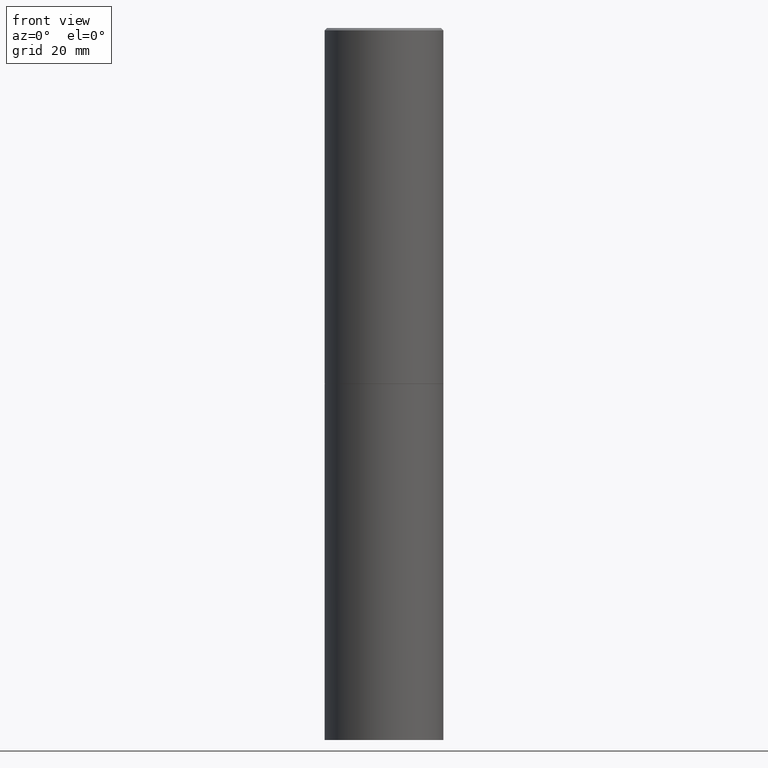
[diagram: clean part render]
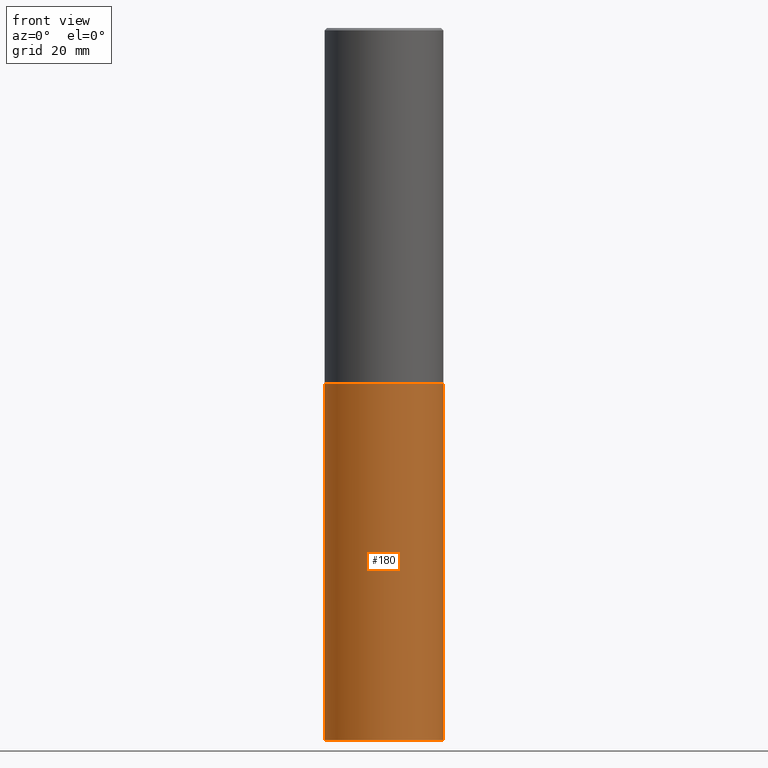
[diagram: same view with one face highlighted and labeled with its STEP entity id]
A machine part, front view. The second image highlights one B-rep face of the part: STEP entity #180.
In plain terms, the highlighted cylindrical surface (partial cylindrical patch) has radius 12.7 mm, axis along (-0, 0, 1).
Its self-contained STEP definition (entity closure, byte-faithful):
#10 = ORIENTED_EDGE ( 'NONE', *, *, #130, .F. ) ;
#12 = ORIENTED_EDGE ( 'NONE', *, *, #36, .F. ) ;
#17 = LINE ( 'NONE', #125, #307 ) ;
#18 = AXIS2_PLACEMENT_3D ( 'NONE', #97, #153, #308 ) ;
#36 = EDGE_CURVE ( 'NONE', #327, #91, #197, .T. ) ;
#39 = EDGE_CURVE ( 'NONE', #84, #179, #17, .T. ) ;
#46 = CYLINDRICAL_SURFACE ( 'NONE', #300, 0.5000000000000000000 ) ;
#54 = CARTESIAN_POINT ( 'NONE',  ( -0.5000000000000000000, 3.552713678800500929E-15, -2.459467545127452891E-29 ) ) ;
#84 = VERTEX_POINT ( 'NONE', #336 ) ;
#91 = VERTEX_POINT ( 'NONE', #272 ) ;
#95 = DIRECTION ( 'NONE',  ( -2.445468806185136597E-29, 3.491481338843145583E-15, 1.000000000000000000 ) ) ;
#97 = CARTESIAN_POINT ( 'NONE',  ( 7.336406418555409790E-29, -1.047444401652943635E-14, -3.000000000000000444 ) ) ;
#99 = VECTOR ( 'NONE', #172, 39.37007874015748143 ) ;
#125 = CARTESIAN_POINT ( 'NONE',  ( 0.5000000000000000000, -3.491481338843133355E-15, 2.438088387897967896E-29 ) ) ;
#130 = EDGE_CURVE ( 'NONE', #91, #179, #316, .T. ) ;
#153 = DIRECTION ( 'NONE',  ( -2.445468806185136597E-29, 3.491481338843145583E-15, 1.000000000000000000 ) ) ;
#160 = CARTESIAN_POINT ( 'NONE',  ( 0.000000000000000000, 0.000000000000000000, 0.000000000000000000 ) ) ;
#162 = CIRCLE ( 'NONE', #214, 0.5000000000000000000 ) ;
#166 = DIRECTION ( 'NONE',  ( -2.445468806185136597E-29, 3.491481338843145583E-15, 1.000000000000000000 ) ) ;
#172 = DIRECTION ( 'NONE',  ( -2.445468806185136877E-29, 3.491481338843145188E-15, 1.000000000000000000 ) ) ;
#174 = EDGE_LOOP ( 'NONE', ( #12, #238, #352, #10 ) ) ;
#179 = VERTEX_POINT ( 'NONE', #244 ) ;
#180 = ADVANCED_FACE ( 'NONE', ( #189 ), #46, .T. ) ;
#189 = FACE_OUTER_BOUND ( 'NONE', #174, .T. ) ;
#191 = DIRECTION ( 'NONE',  ( 1.000000000000000000, -6.982962677686262766E-15, 0.000000000000000000 ) ) ;
#197 = LINE ( 'NONE', #54, #99 ) ;
#210 = EDGE_CURVE ( 'NONE', #327, #84, #162, .T. ) ;
#214 = AXIS2_PLACEMENT_3D ( 'NONE', #314, #166, #191 ) ;
#238 = ORIENTED_EDGE ( 'NONE', *, *, #210, .T. ) ;
#244 = CARTESIAN_POINT ( 'NONE',  ( 0.5000000000000000000, -1.396592535537257129E-14, -3.000000000000000444 ) ) ;
#245 = DIRECTION ( 'NONE',  ( -2.445468806185136877E-29, 3.491481338843145188E-15, 1.000000000000000000 ) ) ;
#272 = CARTESIAN_POINT ( 'NONE',  ( -0.5000000000000000000, -1.215895234599365439E-14, -3.000000000000000444 ) ) ;
#279 = DIRECTION ( 'NONE',  ( 1.000000000000000000, -6.982962677686266711E-15, 4.876176775795935793E-29 ) ) ;
#281 = CARTESIAN_POINT ( 'NONE',  ( -0.5000000000000000000, -1.215895234599365439E-14, -6.000000000000000888 ) ) ;
#300 = AXIS2_PLACEMENT_3D ( 'NONE', #160, #95, #279 ) ;
#307 = VECTOR ( 'NONE', #245, 39.37007874015748143 ) ;
#308 = DIRECTION ( 'NONE',  ( 1.000000000000000000, -6.982962677686266711E-15, 0.000000000000000000 ) ) ;
#314 = CARTESIAN_POINT ( 'NONE',  ( 1.467281283711081958E-28, -2.094888803305887271E-14, -6.000000000000000888 ) ) ;
#316 = CIRCLE ( 'NONE', #18, 0.5000000000000000000 ) ;
#327 = VERTEX_POINT ( 'NONE', #281 ) ;
#336 = CARTESIAN_POINT ( 'NONE',  ( 0.5000000000000000000, -2.444036937190200606E-14, -6.000000000000000888 ) ) ;
#352 = ORIENTED_EDGE ( 'NONE', *, *, #39, .T. ) ;